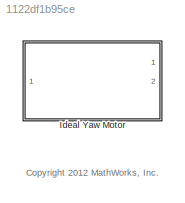
MODEL slx_1122df1b95ce
KIND library
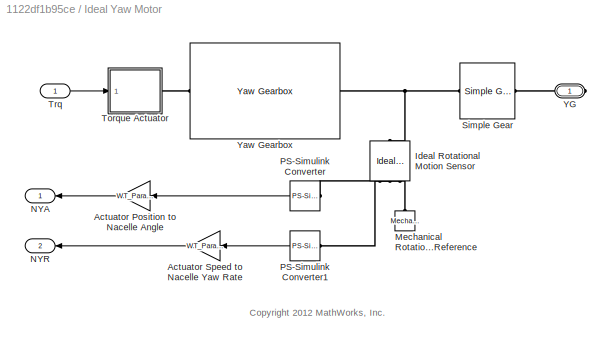
BLOCK [SubSystem] Ideal Yaw Motor
  FunctionWithSeparateData = off
  MaskHideContents = off
  MinAlgLoopOccurrences = off
  Opaque = off
  Ports = [1, 2, 0, 0, 0, 0, 1]
  PropExecContextOutsideSubsystem = off
  RTWSystemCode = Auto
  RequestExecContextInheritance = off
BLOCK [Gain] Ideal Yaw Motor/Actuator Position to Nacelle Angle
  Gain = WT_Params.Yaw_Actuator.yaw_gear_diameter/WT_Params.Yaw_Actuator.yaw_ring_diameter
  OutDataTypeStr = Inherit: Inherit via internal rule
  ParamDataTypeStr = Inherit: Inherit via internal rule
  SaturateOnIntegerOverflow = off
BLOCK [Gain] Ideal Yaw Motor/Actuator Speed to Nacelle Yaw Rate
  Gain = WT_Params.Yaw_Actuator.yaw_gear_diameter/WT_Params.Yaw_Actuator.yaw_ring_diameter
  OutDataTypeStr = Inherit: Inherit via internal rule
  ParamDataTypeStr = Inherit: Inherit via internal rule
  SaturateOnIntegerOverflow = off
BLOCK [Reference] Ideal Yaw Motor/Ideal Rotational Motion Sensor  REF=fl_lib/Mechanical/Mechanical Sensors/Ideal Rotational
Motion Sensor
  ClassName = angular_velocity
  ComponentPath = foundation.mechanical.sensors.angular_velocity
  ComponentVariantNames = angular_velocity
  ComponentVariants = foundation.mechanical.sensors.angular_velocity
  LocalVarDescs = |w|t|phi
  LocalVarLogging = [0 0 0]
  LocalVarNames = |w|t|phi
  Ports = [0, 0, 0, 0, 0, 1, 3]
  SchemaVersion = 1
  SourceBlock = fl_lib/Mechanical/Mechanical Sensors/Ideal Rotational\nMotion Sensor
  SourceFile = foundation.mechanical.sensors.angular_velocity
  SourceType = Ideal Rotational\nMotion Sensor
  offset = 0
  offset_unit = rad
  phi_Log = off
  t_Log = off
  w_Log = off
BLOCK [Reference] Ideal Yaw Motor/Mechanical Rotational Reference  REF=fl_lib/Mechanical/Rotational Elements/Mechanical
Rotational Reference
  ClassName = reference
  ComponentPath = foundation.mechanical.rotational.reference
  ComponentVariantNames = reference
  ComponentVariants = foundation.mechanical.rotational.reference
  LocalVarDescs = |t
  LocalVarLogging = 0
  LocalVarNames = |t
  Ports = [0, 0, 0, 0, 0, 1]
  SchemaVersion = 1
  SourceBlock = fl_lib/Mechanical/Rotational Elements/Mechanical\nRotational Reference
  SourceFile = foundation.mechanical.rotational.reference
  SourceType = Mechanical\nRotational Reference
  t_Log = off
BLOCK [Outport] Ideal Yaw Motor/NYA
  IconDisplay = Port number
BLOCK [Outport] Ideal Yaw Motor/NYR
  IconDisplay = Port number
  Port = 2
BLOCK [Reference] Ideal Yaw Motor/PS-Simulink Converter  REF=nesl_utility/PS-Simulink
Converter
  AffineConversion = off
  Frequencies = []
  LeftPortType = input
  PhysicalDomain = network_engine_domain
  Ports = [0, 1, 0, 0, 0, 1]
  PseudoPeriodic = off
  RightPortType = output
  SourceBlock = nesl_utility/PS-Simulink\nConverter
  SourceType = PS-Simulink\nConverter
  SubClassName = ps_output
  Unit = deg
BLOCK [Reference] Ideal Yaw Motor/PS-Simulink Converter1  REF=nesl_utility/PS-Simulink
Converter
  AffineConversion = off
  Frequencies = []
  LeftPortType = input
  PhysicalDomain = network_engine_domain
  Ports = [0, 1, 0, 0, 0, 1]
  PseudoPeriodic = off
  RightPortType = output
  SourceBlock = nesl_utility/PS-Simulink\nConverter
  SourceType = PS-Simulink\nConverter
  SubClassName = ps_output
  Unit = deg/s
BLOCK [Reference] Ideal Yaw Motor/Simple Gear  REF=sdl_lib/Gears/Simple Gear
  ClassName = simple_gear
  ComponentPath = sdl.gears.simple_gear
  ComponentVariantNames = simple_gear
  ComponentVariants = sdl.gears.simple_gear
  LocalVarLogging = []
  Ports = [0, 0, 0, 0, 0, 1, 1]
  SchemaVersion = 1
  SourceBlock = sdl_lib/Gears/Simple Gear
  SourceFile = sdl.gears.simple_gear
  SourceType = Simple Gear
  T_noload = 0.1
  T_noload_unit = N*m
  T_nom = 5
  T_nom_unit = N*m
  efficiency = 0.8
  efficiency_nom = 0.8
  efficiency_nom_unit = 1
  efficiency_unit = 1
  friction_model = 1
  friction_model_unit = 1
  mu_visc = [ 0 0 ]
  mu_visc_unit = N*m/(rad/s)
  ratio = 1/(WT_Params.Yaw_Actuator.yaw_gear_diameter/WT_Params.Yaw_Actuator.yaw_ring_diameter)
  ratio_unit = 1
  rotation_direction = 2
  rotation_direction_unit = 1
  w_thr = 0.01
  w_thr_unit = rad/s
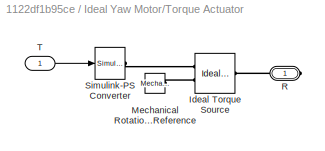
BLOCK [SubSystem] Ideal Yaw Motor/Torque Actuator
  FunctionWithSeparateData = off
  MaskHideContents = off
  MinAlgLoopOccurrences = off
  Opaque = off
  Ports = [1, 0, 0, 0, 0, 0, 1]
  PropExecContextOutsideSubsystem = off
  RTWSystemCode = Auto
  RequestExecContextInheritance = off
BLOCK [Reference] Ideal Yaw Motor/Torque Actuator/Ideal Torque Source  REF=fl_lib/Mechanical/Mechanical Sources/Ideal Torque Source
  ClassName = torque
  ComponentPath = foundation.mechanical.sources.torque
  ComponentVariantNames = torque
  ComponentVariants = foundation.mechanical.sources.torque
  LocalVarDescs = |w|t
  LocalVarLogging = [0 0]
  LocalVarNames = |w|t
  Ports = [0, 0, 0, 0, 0, 1, 2]
  SchemaVersion = 1
  SourceBlock = fl_lib/Mechanical/Mechanical Sources/Ideal Torque Source
  SourceFile = foundation.mechanical.sources.torque
  SourceType = Ideal Torque Source
  t_Log = off
  w_Log = off
BLOCK [Reference] Ideal Yaw Motor/Torque Actuator/Mechanical Rotational Reference  REF=fl_lib/Mechanical/Rotational Elements/Mechanical
Rotational Reference
  ClassName = reference
  ComponentPath = foundation.mechanical.rotational.reference
  ComponentVariantNames = reference
  ComponentVariants = foundation.mechanical.rotational.reference
  LocalVarDescs = |t
  LocalVarLogging = 0
  LocalVarNames = |t
  Ports = [0, 0, 0, 0, 0, 1]
  SchemaVersion = 1
  SourceBlock = fl_lib/Mechanical/Rotational Elements/Mechanical\nRotational Reference
  SourceFile = foundation.mechanical.rotational.reference
  SourceType = Mechanical\nRotational Reference
  t_Log = off
BLOCK [PMIOPort] Ideal Yaw Motor/Torque Actuator/R
  Port = 1
  Side = Right
BLOCK [Reference] Ideal Yaw Motor/Torque Actuator/Simulink-PS Converter  REF=nesl_utility/Simulink-PS
Converter
  AffineConversion = off
  Frequencies = []
  InputFilterTimeConstant = .001
  InputFiltering = off
  LeftPortType = input
  NoiseDistribution = none
  NoiseParameters = []
  PhysicalDomain = network_engine_domain
  Ports = [1, 0, 0, 0, 0, 0, 1]
  PseudoPeriodic = off
  RightPortType = output
  SimscapeFilterOrder = 1
  SourceBlock = nesl_utility/Simulink-PS\nConverter
  SourceType = Simulink-PS\nConverter
  SubClassName = ps_input
  UdotUserProvided = 0
  Unit = 1
BLOCK [Inport] Ideal Yaw Motor/Torque Actuator/T
  IconDisplay = Port number
BLOCK [Inport] Ideal Yaw Motor/Trq
  IconDisplay = Port number
BLOCK [PMIOPort] Ideal Yaw Motor/YG
  Port = 1
  Side = Right
BLOCK [Reference] Ideal Yaw Motor/Yaw Gearbox  REF=Yaw_Gearbox_Lib/Yaw Gearbox
  FunctionWithSeparateData = off
  GeneratePreprocessorConditionals = off
  Ports = [0, 0, 0, 0, 0, 1, 1]
  ShowPortLabels = FromPortIcon
  SourceBlock = Yaw_Gearbox_Lib/Yaw Gearbox
  SystemSampleTime = -1
ANNOTATION (root): <copyright redacted>
ANNOTATION Ideal Yaw Motor: <copyright redacted>
LINE Ideal Yaw Motor/Actuator Position to Nacelle Angle:1 -> Ideal Yaw Motor/NYA:1
LINE Ideal Yaw Motor/Actuator Speed to Nacelle Yaw Rate:1 -> Ideal Yaw Motor/NYR:1
LINE Ideal Yaw Motor/PS-Simulink Converter1:1 -> Ideal Yaw Motor/Actuator Speed to Nacelle Yaw Rate:1
LINE Ideal Yaw Motor/PS-Simulink Converter:1 -> Ideal Yaw Motor/Actuator Position to Nacelle Angle:1
LINE Ideal Yaw Motor/Torque Actuator/T:1 -> Ideal Yaw Motor/Torque Actuator/Simulink-PS Converter:1
LINE Ideal Yaw Motor/Trq:1 -> Ideal Yaw Motor/Torque Actuator:1
PNET net1: Ideal Yaw Motor/Ideal Rotational Motion Sensor:LConn1 -- Ideal Yaw Motor/Simple Gear:LConn1 -- Ideal Yaw Motor/Yaw Gearbox:RConn1
PLINE Ideal Yaw Motor/Ideal Rotational Motion Sensor:RConn1 -- Ideal Yaw Motor/Mechanical Rotational Reference:LConn1
PLINE Ideal Yaw Motor/Ideal Rotational Motion Sensor:RConn2 -- Ideal Yaw Motor/PS-Simulink Converter1:LConn1
PLINE Ideal Yaw Motor/Ideal Rotational Motion Sensor:RConn3 -- Ideal Yaw Motor/PS-Simulink Converter:LConn1
PLINE Ideal Yaw Motor/Simple Gear:RConn1 -- Ideal Yaw Motor/YG:RConn1
PLINE Ideal Yaw Motor/Torque Actuator/Ideal Torque Source:LConn1 -- Ideal Yaw Motor/Torque Actuator/R:RConn1
PLINE Ideal Yaw Motor/Torque Actuator/Ideal Torque Source:RConn1 -- Ideal Yaw Motor/Torque Actuator/Simulink-PS Converter:RConn1
PLINE Ideal Yaw Motor/Torque Actuator/Ideal Torque Source:RConn2 -- Ideal Yaw Motor/Torque Actuator/Mechanical Rotational Reference:LConn1
PLINE Ideal Yaw Motor/Torque Actuator:RConn1 -- Ideal Yaw Motor/Yaw Gearbox:LConn1
note: PNET lines group multi-terminal physical nets as a canonical sorted terminal list (undirected conserving connections); 2-terminal nets keep the pairwise PLINE form
